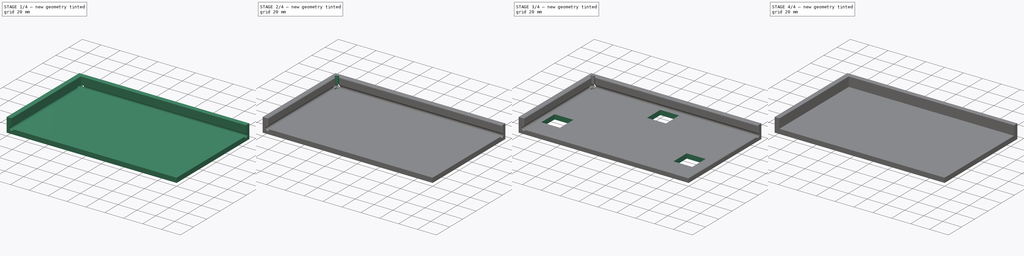
[diagram: build sequence overview — one tinted view per stage of 4, left to right]
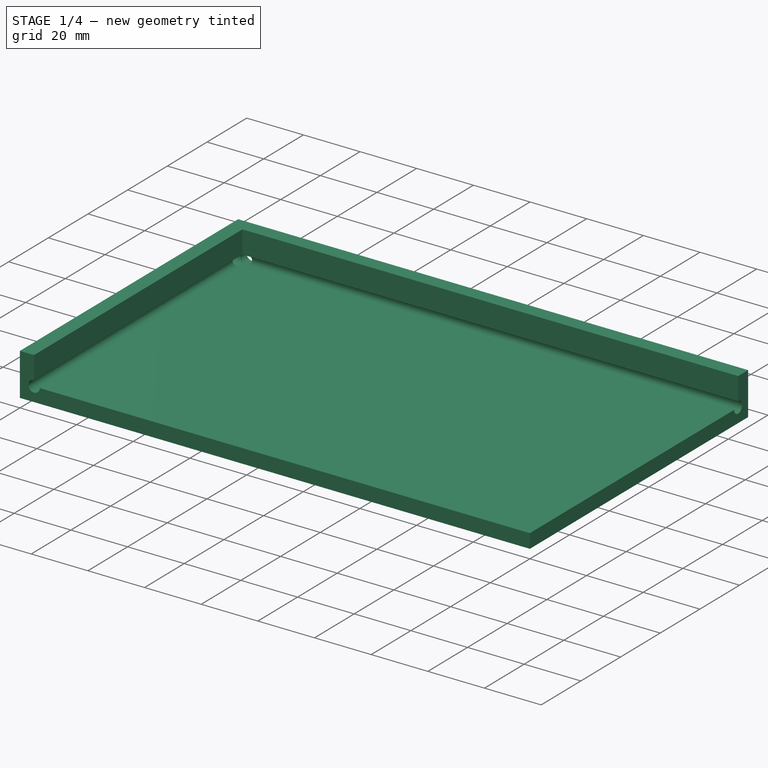
[diagram: stage 1 of 4 — iso view after this stage's code; geometry added in this stage tinted green]
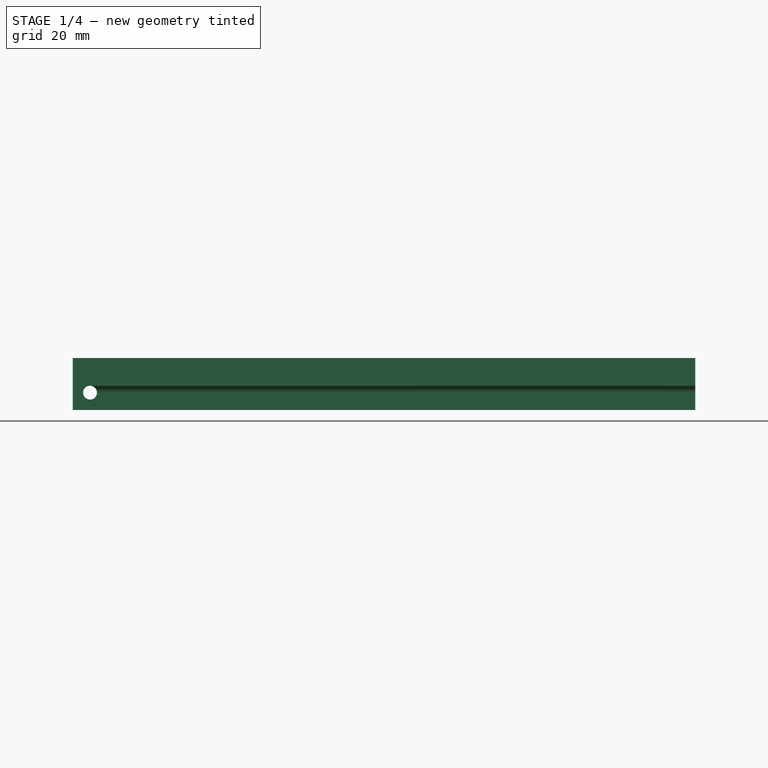
[diagram: stage 1 of 4 — front view after this stage's code; geometry added in this stage tinted green]
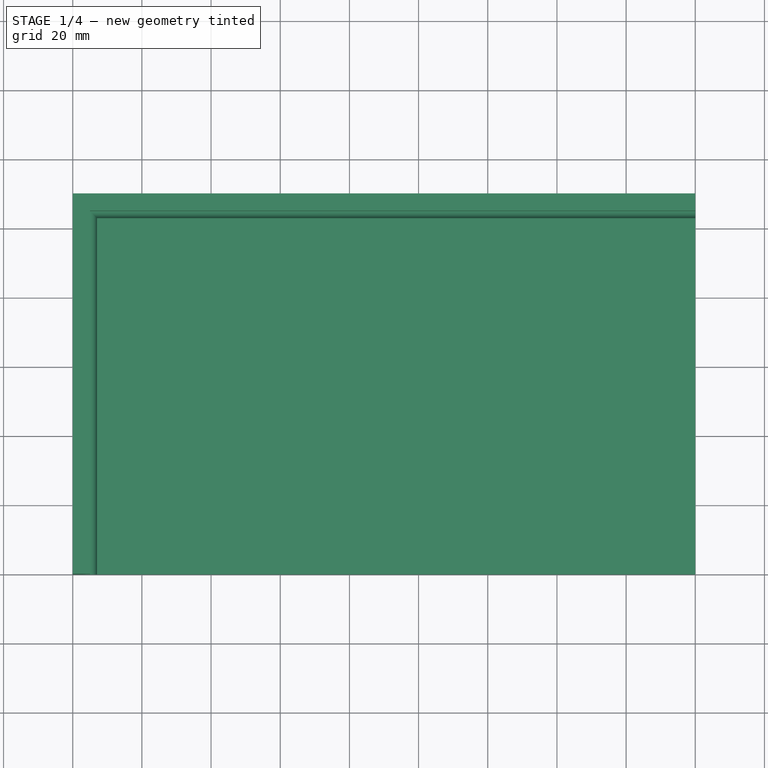
[diagram: stage 1 of 4 — top view after this stage's code; geometry added in this stage tinted green]
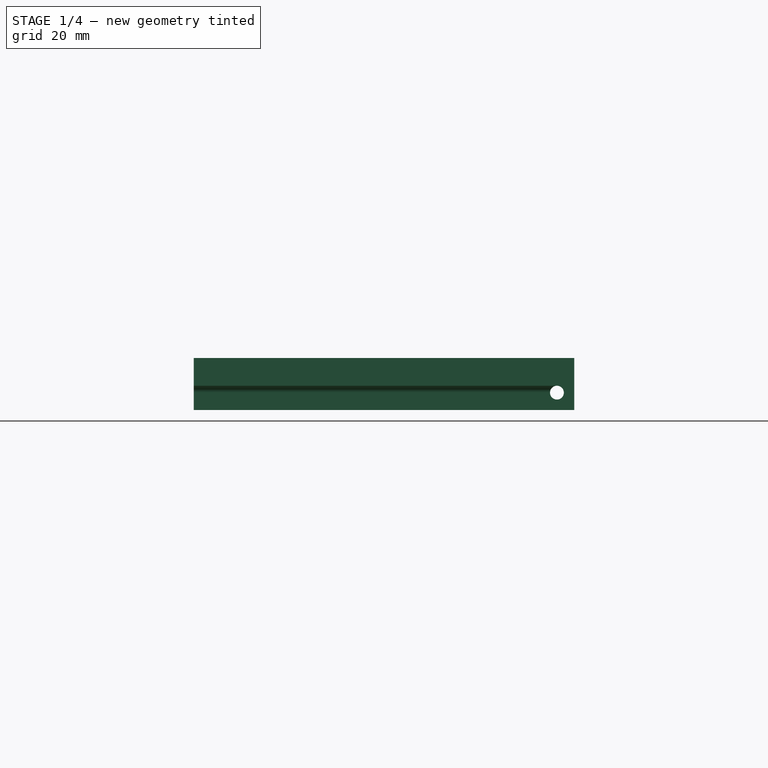
[diagram: stage 1 of 4 — right view after this stage's code; geometry added in this stage tinted green]
FCSTD DOCUMENT  (FreeCAD 0.16R5861 (Git))
Label: control_box_foot_spacing_fixture
License: CreativeCommons Attribution-ShareAlike
LicenseURL: http://creativecommons.org/licenses/by-sa/4.0/
objects: Sketcher::SketchObject×6, PartDesign::Pad×4, PartDesign::Pocket×4, PartDesign::Fillet×3, Part::Part2DObjectPython×2, Part::Cut×2, Part::Feature×1, PartDesign::Chamfer×1
note: 31 computed .brp shape members not serialized (recipe doc carries the construction recipe); baked Part::Feature solids carry a one-line shape summary decoded from their .brp

FEATURE [Part::Feature] Pad001001  label="Pad002"
  shape: bbox 180 x 110 x 15 mm, 9 faces (baked)
FEATURE [Sketcher::SketchObject] Sketch002
  ExternalGeometry = -> [Pad001001]
  Placement = pos=(0,0,0) rot=(1,0,0;1.5708rad)
  Support = -> Pad001001 [Face2]
  sketch-geometry (1):
    g0: Circle CenterX=5 CenterY=5 CenterZ=0 NormalX=0 NormalY=0 NormalZ=1 Radius=2
  constraints (2):
    c: Coincident(g0,g-3)
    c: Radius(g0) = 2
FEATURE [PartDesign::Pocket] Pocket
  Length = 105
  Sketch = -> Sketch002
  Type = 1
FEATURE [Sketcher::SketchObject] Sketch003
  ExternalGeometry = -> [Pocket]
  Placement = pos=(180,0,0) rot=(0.57735,0.57735,0.57735;2.0944rad)
  Support = -> Pocket [Face3]
  sketch-geometry (1):
    g0: Circle CenterX=105 CenterY=5 CenterZ=0 NormalX=0 NormalY=0 NormalZ=1 Radius=2
  constraints (2):
    c: Coincident(g0,g-3)
    c: Radius(g0) = 2
FEATURE [PartDesign::Pocket] Pocket001
  Length = 5
  Sketch = -> Sketch003
  Type = 1
FEATURE [Part::Part2DObjectPython] ShapeString  # Draft 2D object (typed FeaturePython)
  FontFile = <userpath>/Desktop/Titillium-BoldUpright.otf
  Placement = pos=(33.981,20,0) rot=(1,0,0;3.14159rad)
  Size = 4.5
  String = Open side of control box
  Tracking = 0
FEATURE [PartDesign::Pad] Pad001002
  Length = 2
  Length2 = 100
  Placement = pos=(33.981,20,0) rot=(1,0,0;3.14159rad)
  Reversed = true
  Sketch = -> ShapeString
  Type = 0
FEATURE [Part::Part2DObjectPython] ShapeString001  # Draft 2D object (typed FeaturePython)
  FontFile = <userpath>/Desktop/Titillium-BoldUpright.otf
  Placement = pos=(12.1711,72.9182,0) rot=(1,0,0;3.14159rad)
  Size = 3.75
  String = control_box_foot_spacing_fixture_TAZ6
  Tracking = 0
FEATURE [PartDesign::Pad] Pad001003
  Length = 2
  Length2 = 100
  Placement = pos=(12.1711,72.9182,0) rot=(1,0,0;3.14159rad)
  Reversed = true
  Sketch = -> ShapeString001
  Type = 0
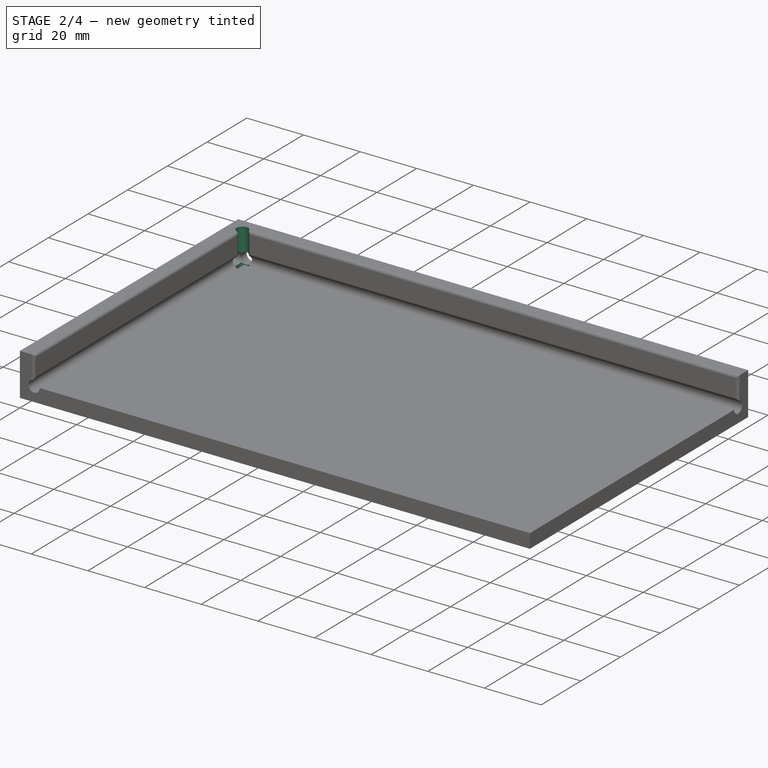
[diagram: stage 2 of 4 — iso view after this stage's code; geometry added in this stage tinted green]
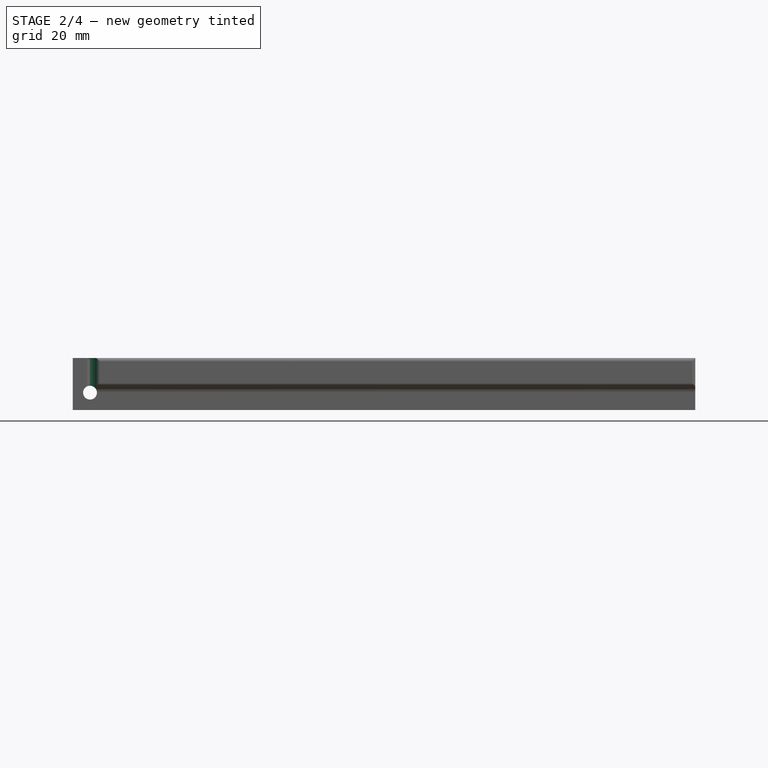
[diagram: stage 2 of 4 — front view after this stage's code; geometry added in this stage tinted green]
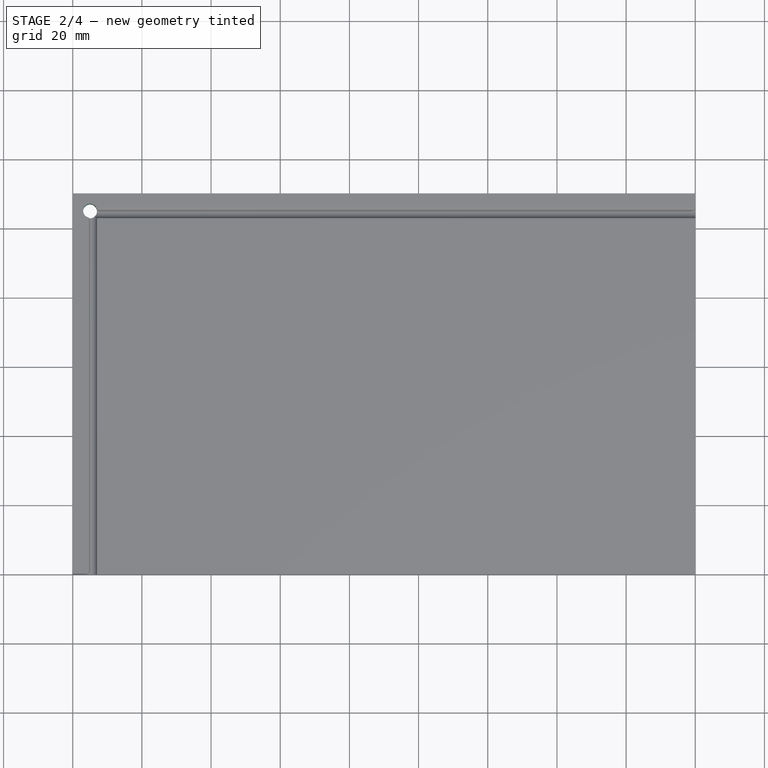
[diagram: stage 2 of 4 — top view after this stage's code; geometry added in this stage tinted green]
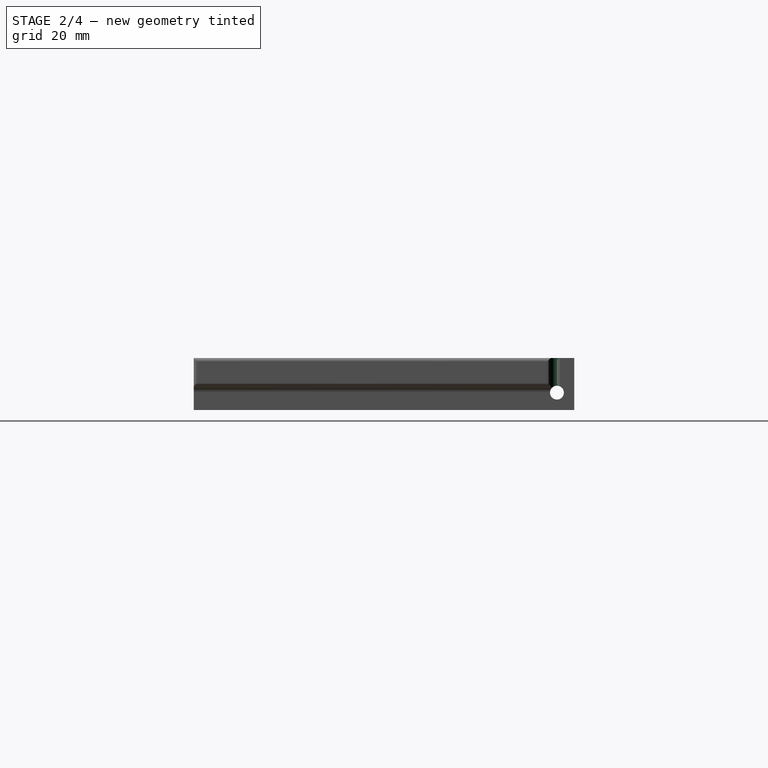
[diagram: stage 2 of 4 — right view after this stage's code; geometry added in this stage tinted green]
FEATURE [Sketcher::SketchObject] Sketch004
  ExternalGeometry = -> [Pocket001]
  Placement = pos=(0,0,15) rot=(0,0,1;0rad)
  Support = -> Pocket001 [Face6]
  sketch-geometry (1):
    g0: Circle CenterX=5 CenterY=105 CenterZ=0 NormalX=0 NormalY=0 NormalZ=1 Radius=2
  constraints (2):
    c: Coincident(g0,g-3)
    c: Radius(g0) = 2
FEATURE [PartDesign::Pocket] Pocket002
  Length = 5
  Sketch = -> Sketch004
  Type = 1
FEATURE [PartDesign::Fillet] Fillet
  Base = -> Pocket002 [Edge50,Edge30,Edge18,Edge47]
  Radius = 1
FEATURE [PartDesign::Fillet] Fillet001
  Base = -> Fillet [Edge60,Edge34,Edge26,Edge47]
  Radius = 1
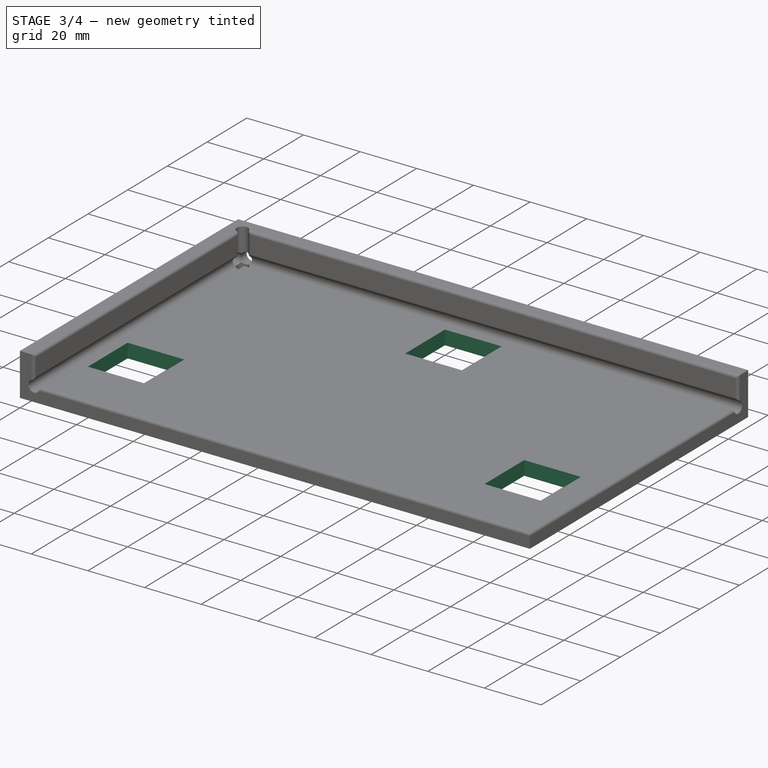
[diagram: stage 3 of 4 — iso view after this stage's code; geometry added in this stage tinted green]
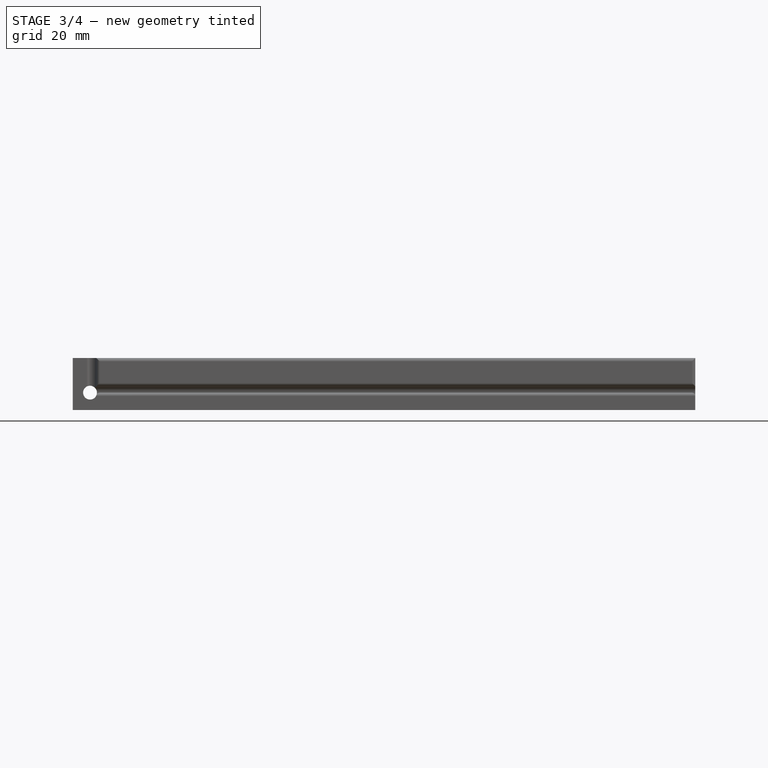
[diagram: stage 3 of 4 — front view after this stage's code; geometry added in this stage tinted green]
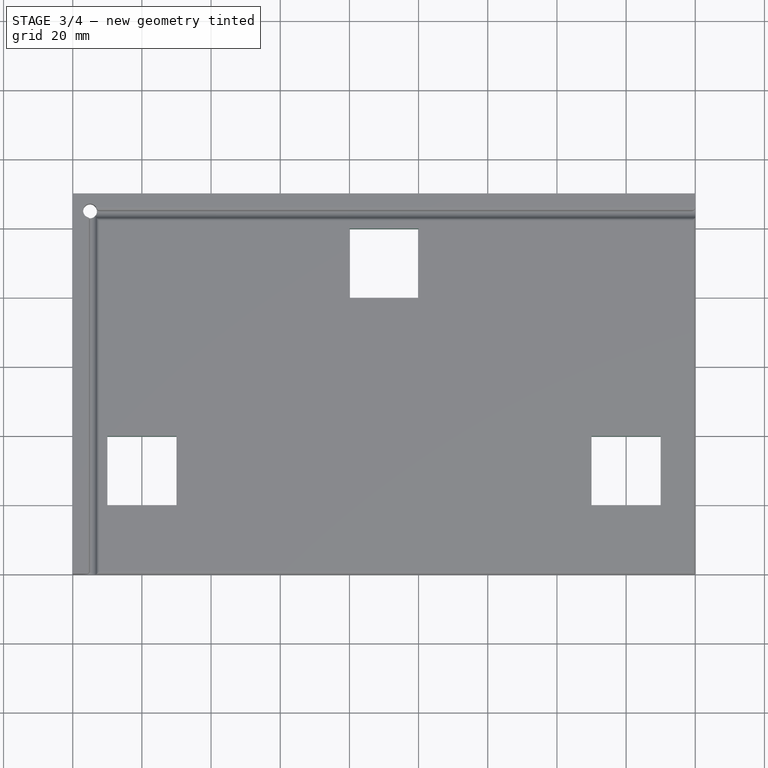
[diagram: stage 3 of 4 — top view after this stage's code; geometry added in this stage tinted green]
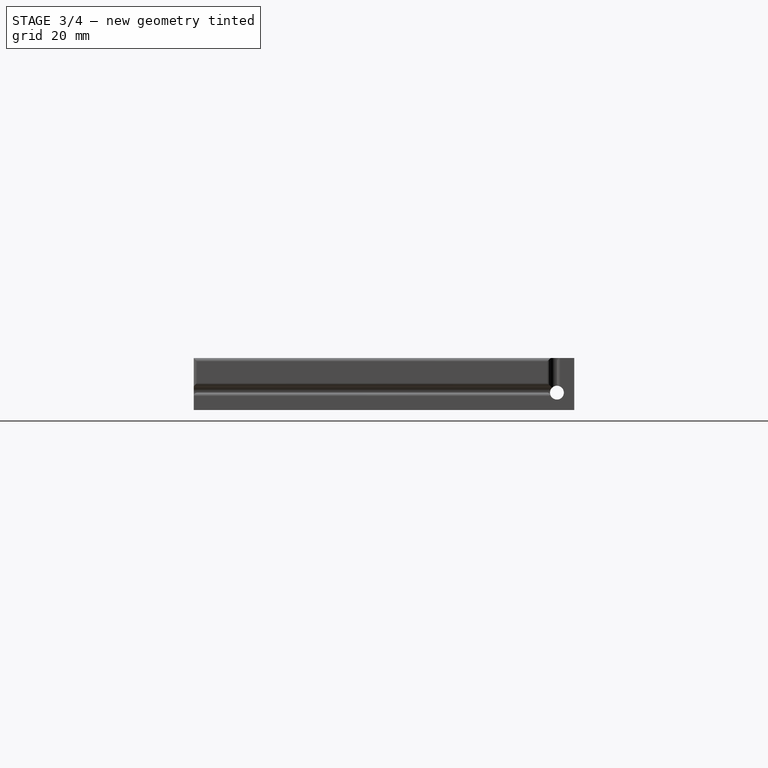
[diagram: stage 3 of 4 — right view after this stage's code; geometry added in this stage tinted green]
FEATURE [PartDesign::Fillet] Fillet002
  Base = -> Fillet001 [Edge26,Edge31,Edge69,Edge48]
  Radius = 1
FEATURE [Sketcher::SketchObject] Sketch005
  ExternalGeometry = -> [Fillet002]
  Placement = pos=(0,0,5) rot=(0,0,1;0rad)
  Support = -> Fillet002 [Face15]
  sketch-geometry (12):
    g0: LineSegment StartX=80 StartY=100 StartZ=0 EndX=100 EndY=100 EndZ=0
    g1: LineSegment StartX=100 StartY=100 StartZ=0 EndX=100 EndY=80 EndZ=0
    g2: LineSegment StartX=100 StartY=80 StartZ=0 EndX=80 EndY=80 EndZ=0
    g3: LineSegment StartX=80 StartY=80 StartZ=0 EndX=80 EndY=100 EndZ=0
    g4: LineSegment StartX=10 StartY=40 StartZ=0 EndX=30 EndY=40 EndZ=0
    g5: LineSegment StartX=30 StartY=40 StartZ=0 EndX=30 EndY=20 EndZ=0
    g6: LineSegment StartX=30 StartY=20 StartZ=0 EndX=10 EndY=20 EndZ=0
    g7: LineSegment StartX=10 StartY=20 StartZ=0 EndX=10 EndY=40 EndZ=0
    g8: LineSegment StartX=150 StartY=40 StartZ=0 EndX=170 EndY=40 EndZ=0
    g9: LineSegment StartX=170 StartY=40 StartZ=0 EndX=170 EndY=20 EndZ=0
    g10: LineSegment StartX=170 StartY=20 StartZ=0 EndX=150 EndY=20 EndZ=0
    g11: LineSegment StartX=150 StartY=20 StartZ=0 EndX=150 EndY=40 EndZ=0
  constraints (42):
    c: Coincident(g0,g1)
    c: Coincident(g1,g2)
    c: Coincident(g2,g3)
    c: Coincident(g3,g0)
    c: Horizontal(g0)
    c: Horizontal(g2)
    c: Vertical(g1)
    c: Vertical(g3)
    c: Coincident(g4,g5)
    c: Coincident(g5,g6)
    c: Coincident(g6,g7)
    c: Coincident(g7,g4)
    c: Horizontal(g4)
    c: Horizontal(g6)
    c: Vertical(g5)
    c: Vertical(g7)
    c: Coincident(g8,g9)
    c: Coincident(g9,g10)
    c: Coincident(g10,g11)
    c: Coincident(g11,g8)
    c: Horizontal(g8)
    c: Horizontal(g10)
    c: Vertical(g9)
    c: Vertical(g11)
    c: Equal(g10,g8)
    c: Equal(g8,g9)
    c: Equal(g9,g11)
    c: Equal(g11,g2)
    c: Equal(g2,g0)
    c: Equal(g0,g1)
    c: Equal(g1,g3)
    c: Equal(g3,g4)
    c: Equal(g4,g5)
    c: Equal(g5,g6)
    c: Equal(g6,g7)
    c: DistanceX(g2) = -20
    c: DistanceX(g6,g-3) = -5
    c: DistanceY(g0,g-4) = 5
    c: DistanceY(g10,g5) = 0
    c: DistanceX(g5,g10) = 120
    c: DistanceX(g2,g4) = -50
    c: DistanceY(g8,g1) = 40
FEATURE [PartDesign::Pocket] Pocket003
  Length = 5
  Sketch = -> Sketch005
  Type = 1
FEATURE [Part::Cut] Cut
  Base = -> Pocket003
  Tool = -> Pad001002
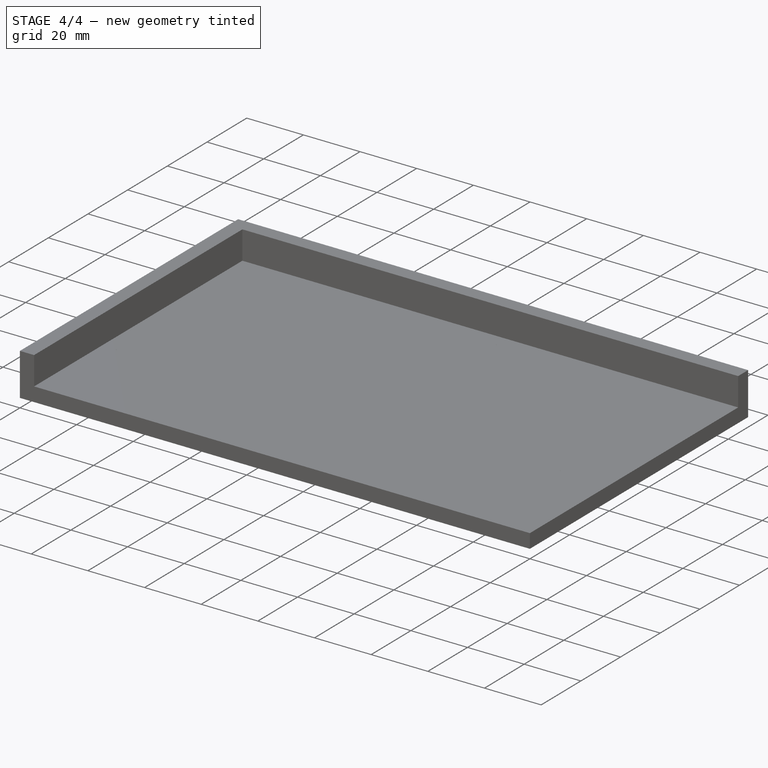
[diagram: stage 4 of 4 — iso view after this stage's code; geometry added in this stage tinted green]
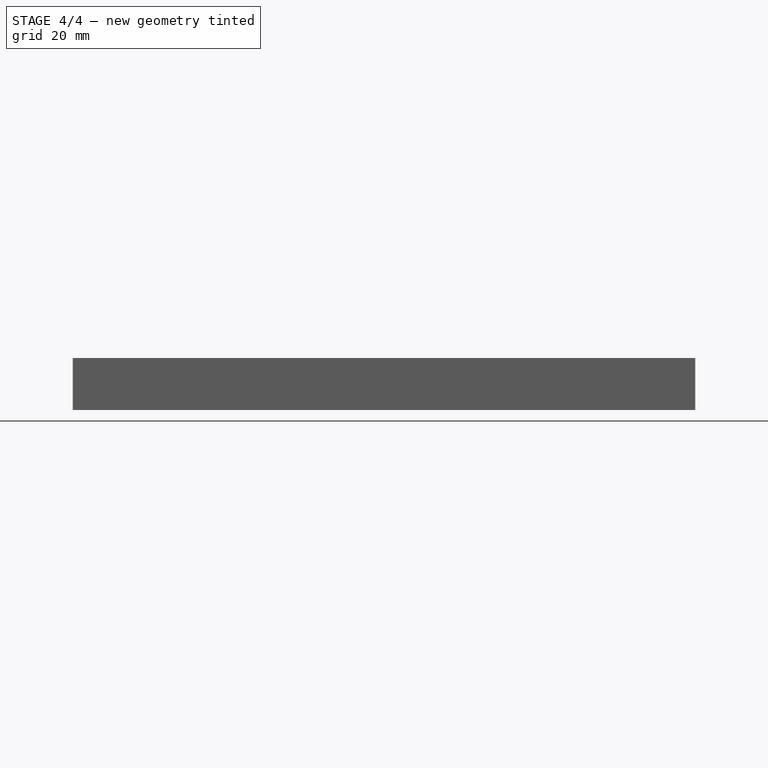
[diagram: stage 4 of 4 — front view after this stage's code; geometry added in this stage tinted green]
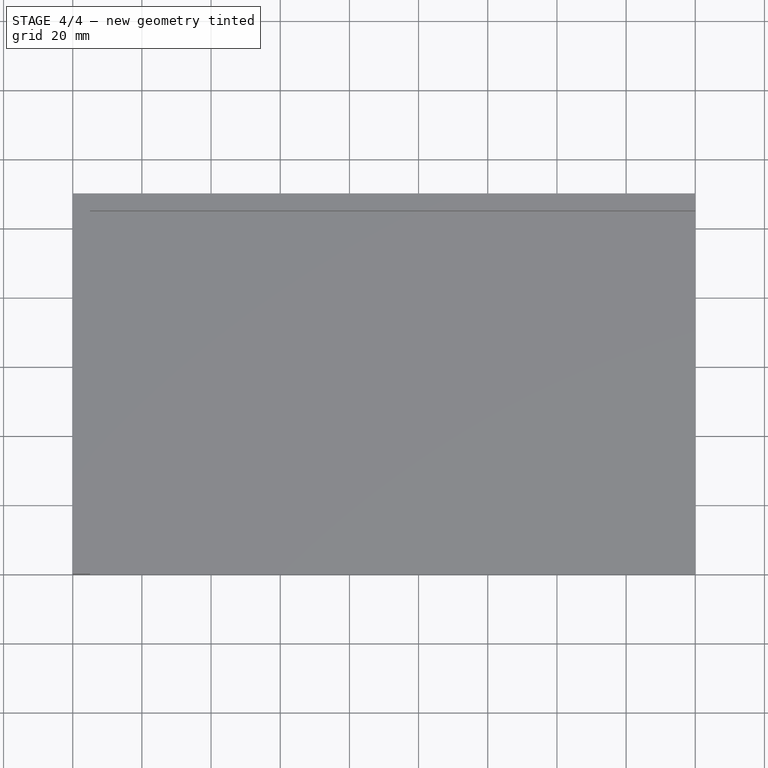
[diagram: stage 4 of 4 — top view after this stage's code; geometry added in this stage tinted green]
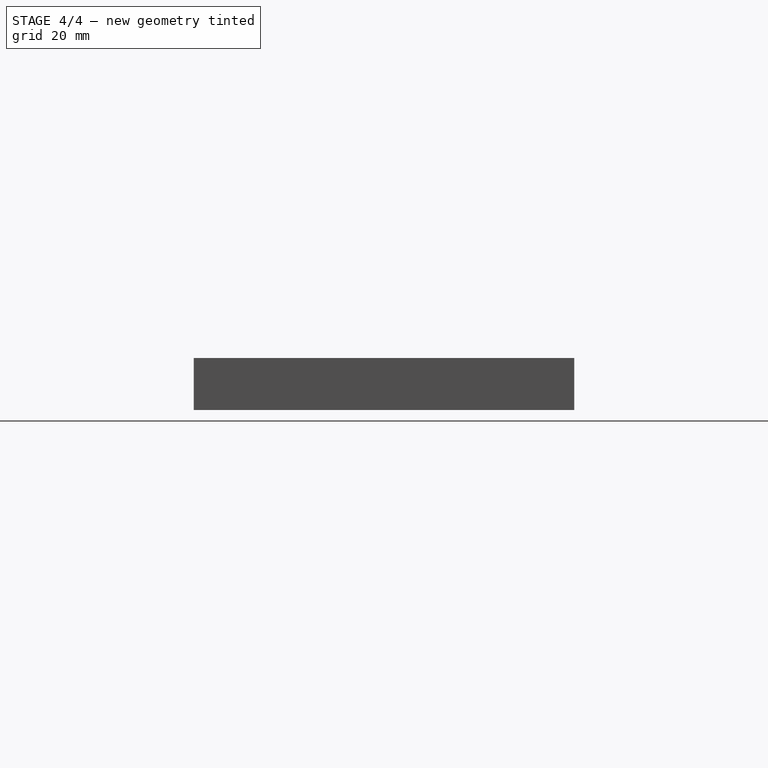
[diagram: stage 4 of 4 — right view after this stage's code; geometry added in this stage tinted green]
FEATURE [Sketcher::SketchObject] Sketch
  sketch-geometry (4):
    g0: LineSegment StartX=0 StartY=0 StartZ=0 EndX=180 EndY=0 EndZ=0
    g1: LineSegment StartX=180 StartY=0 StartZ=0 EndX=180 EndY=110 EndZ=0
    g2: LineSegment StartX=180 StartY=110 StartZ=0 EndX=0 EndY=110 EndZ=0
    g3: LineSegment StartX=0 StartY=110 StartZ=0 EndX=0 EndY=0 EndZ=0
  constraints (11):
    c: Coincident(g0,g1)
    c: Coincident(g1,g2)
    c: Coincident(g2,g3)
    c: Coincident(g3,g0)
    c: Horizontal(g0)
    c: Horizontal(g2)
    c: Vertical(g1)
    c: Vertical(g3)
    c: Coincident(g0,g-1)
    c: DistanceX(g2) = -180
    c: DistanceY(g3) = -110
FEATURE [PartDesign::Pad] Pad
  Length = 5
  Length2 = 100
  Sketch = -> Sketch
  Type = 0
FEATURE [Sketcher::SketchObject] Sketch001
  ExternalGeometry = -> [Pad]
  Placement = pos=(0,0,5) rot=(0,0,1;0rad)
  Support = -> Pad [Face6]
  sketch-geometry (6):
    g0: LineSegment StartX=180 StartY=110 StartZ=0 EndX=180 EndY=105 EndZ=0
    g1: LineSegment StartX=180 StartY=105 StartZ=0 EndX=5 EndY=105 EndZ=0
    g2: LineSegment StartX=5 StartY=105 StartZ=0 EndX=5 EndY=0 EndZ=0
    g3: LineSegment StartX=5 StartY=0 StartZ=0 EndX=0 EndY=0 EndZ=0
    g4: LineSegment StartX=0 StartY=0 StartZ=0 EndX=0 EndY=110 EndZ=0
    g5: LineSegment StartX=0 StartY=110 StartZ=0 EndX=180 EndY=110 EndZ=0
  constraints (13):
    c: Coincident(g-3,g0)
    c: Vertical(g0)
    c: Coincident(g0,g1)
    c: Horizontal(g1)
    c: Coincident(g1,g2)
    c: PointOnObject(g2,g-1)
    c: Vertical(g2)
    c: Coincident(g2,g3)
    c: Coincident(g3,g-1)
    c: Coincident(g3,g4)
    c: Coincident(g4,g-3)
    c: Coincident(g4,g5)
    c: Coincident(g5,g0)
FEATURE [PartDesign::Pad] Pad001
  Length = 10
  Length2 = 100
  Sketch = -> Sketch001
  Type = 0
FEATURE [Part::Cut] Cut001
  Base = -> Cut
  Tool = -> Pad001003
FEATURE [PartDesign::Chamfer] Chamfer
  Base = -> Cut001 [Edge48,Edge50,Edge49,Edge47,Edge42,Edge40,Edge39,Edge41,Edge44,Edge46,Edge45,Edge43]
  Size = 3
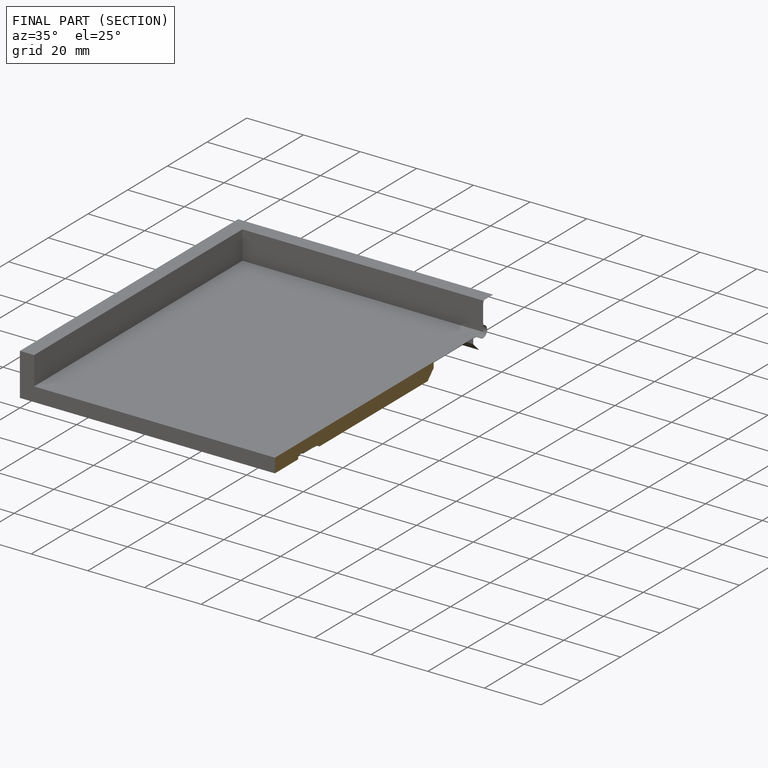
[diagram: finished part — half-section view (interior)]
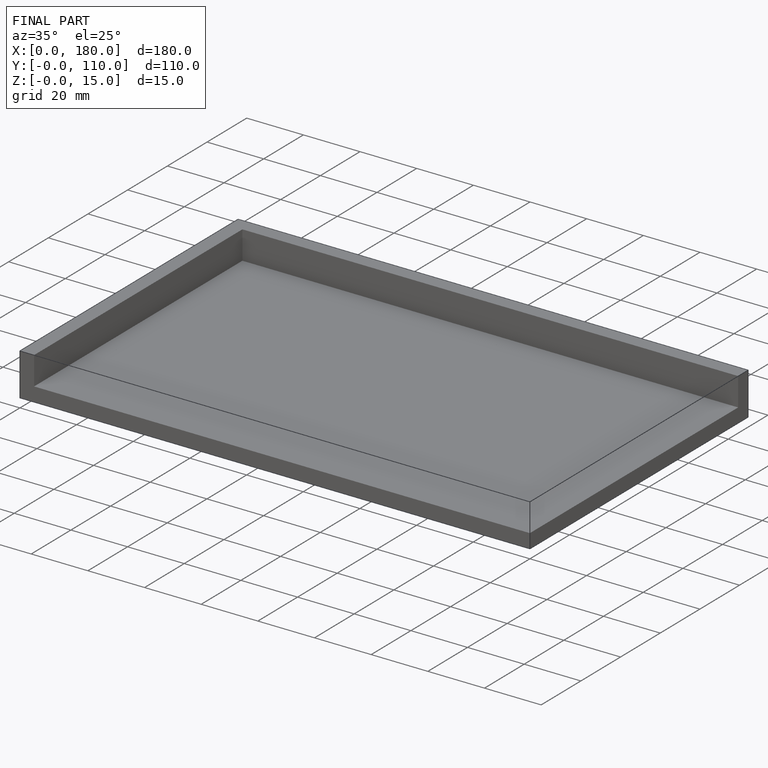
[diagram: finished part — iso view with bounding-box wireframe]
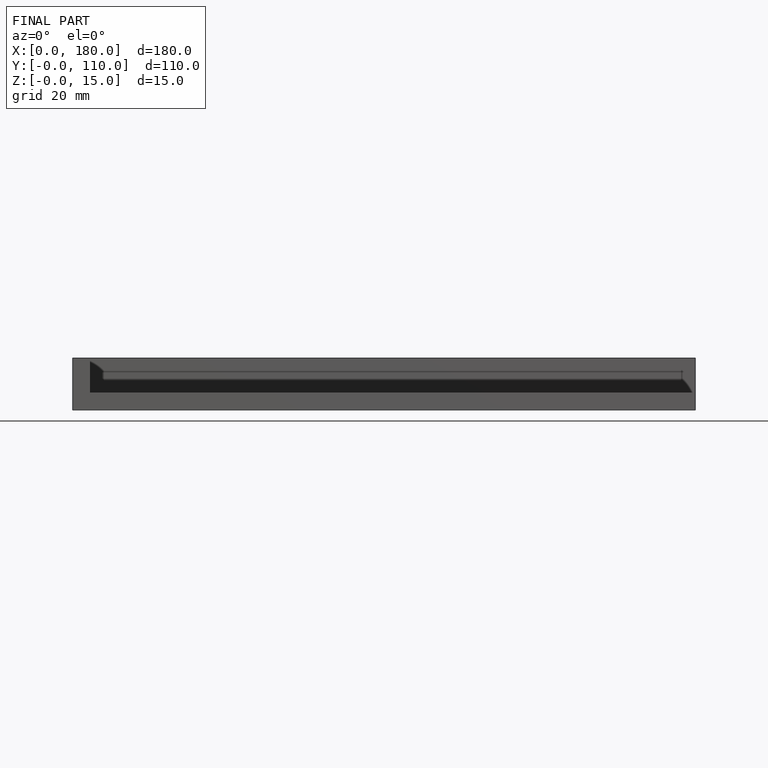
[diagram: finished part — front view with bounding-box wireframe]
